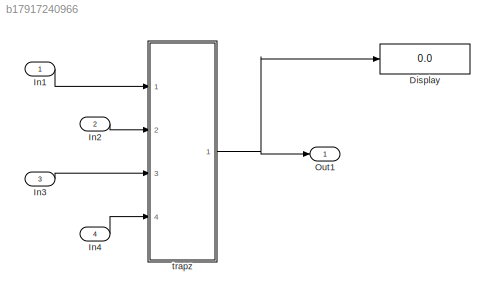
MODEL slx_b17917240966
KIND model
CONFIG AbsTol = auto
CONFIG EnableMultiTasking = off
CONFIG FixedStep = auto
CONFIG MaxStep = auto
CONFIG MinStep = auto
CONFIG RelTol = 1e-3
CONFIG SampleTimeConstraint = Unconstrained
CONFIG Solver = VariableStepAuto
CONFIG SolverName = VariableStepAuto
CONFIG StartTime = 0.0
CONFIG StopTime = 10.0
BLOCK [Display] Display
  Decimation = 1
  Ports = [1]
BLOCK [Inport] In1
  IconDisplay = Port number
  OutDataTypeStr = double
  PortDimensions = 1
BLOCK [Inport] In2
  IconDisplay = Port number
  OutDataTypeStr = double
  Port = 2
  PortDimensions = 10
BLOCK [Inport] In3
  IconDisplay = Port number
  OutDataTypeStr = double
  Port = 3
  PortDimensions = 10
BLOCK [Inport] In4
  IconDisplay = Port number
  OutDataTypeStr = double
  Port = 4
  PortDimensions = 10
BLOCK [Outport] Out1
  IconDisplay = Port number
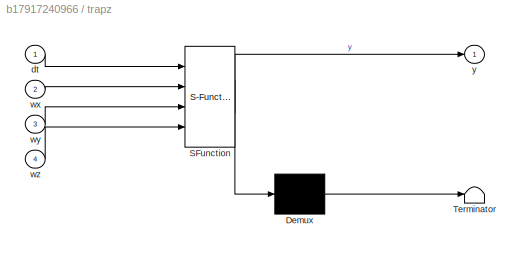
BLOCK [SubSystem] trapz
  ErrorFcn = Stateflow.Translate.translate
  PermitHierarchicalResolution = ExplicitOnly
  Ports = [4, 1]
  RequestExecContextInheritance = off
  SFBlockType = MATLAB Function
  TreatAsAtomicUnit = on
  Variant = off
BLOCK [Demux] trapz/ Demux 
  Outputs = 1
  Ports = [1, 1]
BLOCK [S-Function] trapz/ SFunction 
  EnableBusSupport = on
  FunctionName = sf_sfun
  PortCounts = [4 2]
  Ports = [4, 2]
  SFcnIsStateOwnerBlock = off
  SFunctionDeploymentMode = off
  Tag = Stateflow S-Function bio_matfunc_trapz 19
BLOCK [Terminator] trapz/ Terminator 
BLOCK [Inport] trapz/dt
  IconDisplay = Port number
BLOCK [Inport] trapz/wx
  IconDisplay = Port number
  Port = 2
BLOCK [Inport] trapz/wy
  IconDisplay = Port number
  Port = 3
BLOCK [Inport] trapz/wz
  IconDisplay = Port number
  Port = 4
BLOCK [Outport] trapz/y
  IconDisplay = Port number
LINE In1:1 -> trapz:1
LINE In2:1 -> trapz:2
LINE In3:1 -> trapz:3
LINE In4:1 -> trapz:4
NET trapz:1 -> Display:1, Out1:1
note: NET lines group one-source signal fan-out (src -> all destinations, sorted); 1:1 wires keep LINE
CHART trapz states=1 transitions=1
  STATE_LABEL 'eML_blk_kernel()'
  STATE_LABEL 'SCRIPT:\nfunction y = fcn(dt,wx,wy,wz)\n%#codegen\n\nxi = dt*trapz(wx);\nyi = dt*trapz(wy);\nzi = dt*trapz(wz);\n\ny = [xi;yi;zi];'
